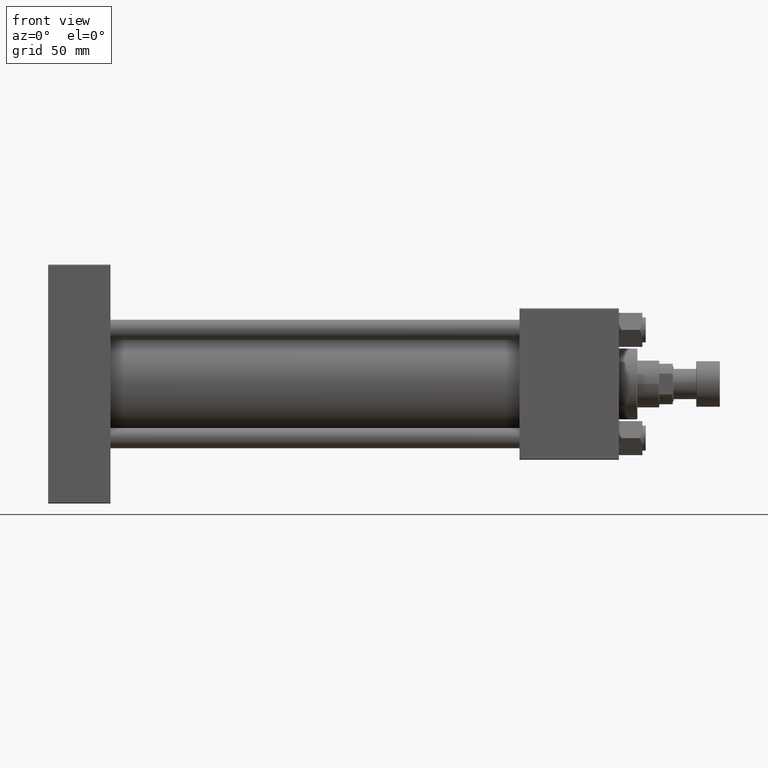
[diagram: clean part render]
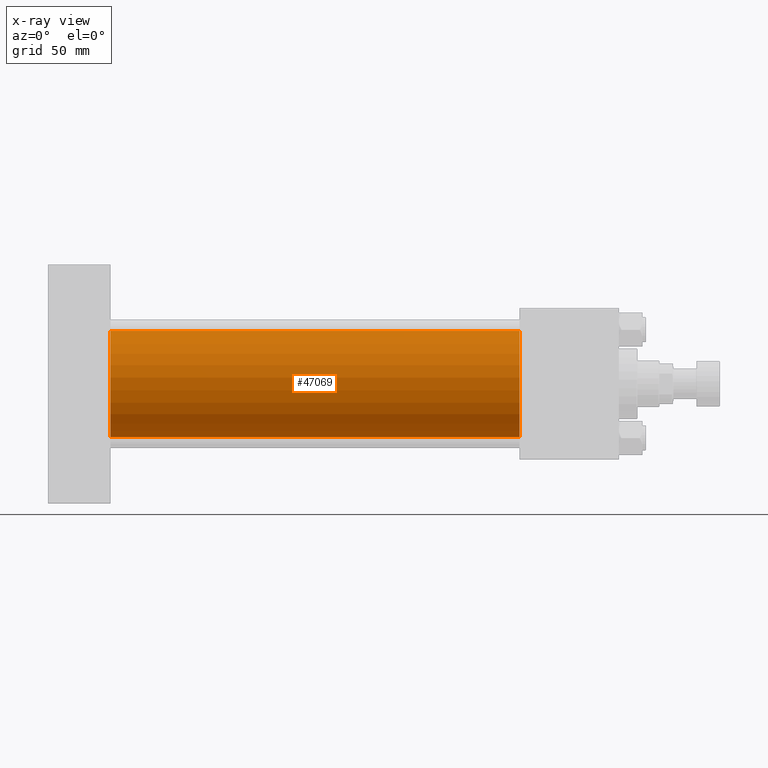
[diagram: x-ray — body ghosted, one internal face saturated and labeled with its STEP entity id]
A machine part, front view, then the same camera in x-ray: the body is ghosted and one INTERNAL B-rep face — a face not visible from any outside direction — is saturated and labeled: STEP entity #47069.
In plain terms, the highlighted cylindrical surface (partial cylindrical patch) has radius 31.5 mm, axis along (-1, -0, -0).
Its self-contained STEP definition (entity closure, byte-faithful):
#33 = DIRECTION ( 'NONE',  ( 0.000000000000000000, 0.000000000000000000, -1.000000000000000000 ) ) ;
#504 = VERTEX_POINT ( 'NONE', #2422 ) ;
#1623 = VERTEX_POINT ( 'NONE', #14372 ) ;
#2422 = CARTESIAN_POINT ( 'NONE',  ( 37.00000000000000000, 1.255552203348951850E-15, -31.50000000000000000 ) ) ;
#3040 = EDGE_LOOP ( 'NONE', ( #41451, #32330, #9988, #32694 ) ) ;
#3165 = EDGE_CURVE ( 'NONE', #15665, #1623, #17457, .T. ) ;
#8079 = DIRECTION ( 'NONE',  ( -1.000000000000000000, -0.000000000000000000, -0.000000000000000000 ) ) ;
#9086 = CIRCLE ( 'NONE', #24369, 31.50000000000000000 ) ;
#9988 = ORIENTED_EDGE ( 'NONE', *, *, #21315, .F. ) ;
#10262 = DIRECTION ( 'NONE',  ( -1.000000000000000000, -0.000000000000000000, -0.000000000000000000 ) ) ;
#12769 = CARTESIAN_POINT ( 'NONE',  ( 37.00000000000000000, -2.602085213965210642E-15, 0.000000000000000000 ) ) ;
#12833 = CARTESIAN_POINT ( 'NONE',  ( 279.9999999999999432, -2.602085213965210642E-15, 0.000000000000000000 ) ) ;
#13116 = CIRCLE ( 'NONE', #34389, 31.50000000000000000 ) ;
#13301 = DIRECTION ( 'NONE',  ( 0.000000000000000000, 0.000000000000000000, -1.000000000000000000 ) ) ;
#14372 = CARTESIAN_POINT ( 'NONE',  ( 37.00000000000000000, -2.602085213965210642E-15, 31.50000000000000000 ) ) ;
#15621 = VECTOR ( 'NONE', #10262, 1000.000000000000000 ) ;
#15665 = VERTEX_POINT ( 'NONE', #22743 ) ;
#16316 = CYLINDRICAL_SURFACE ( 'NONE', #48952, 31.50000000000000000 ) ;
#17457 = LINE ( 'NONE', #45909, #15621 ) ;
#21315 = EDGE_CURVE ( 'NONE', #1623, #504, #13116, .T. ) ;
#22743 = CARTESIAN_POINT ( 'NONE',  ( 279.9999999999999432, -2.602085213965210642E-15, 31.50000000000000000 ) ) ;
#24369 = AXIS2_PLACEMENT_3D ( 'NONE', #40449, #47894, #33 ) ;
#26285 = EDGE_CURVE ( 'NONE', #15665, #47615, #9086, .T. ) ;
#28218 = EDGE_CURVE ( 'NONE', #47615, #504, #43131, .T. ) ;
#30359 = VECTOR ( 'NONE', #42592, 1000.000000000000000 ) ;
#32330 = ORIENTED_EDGE ( 'NONE', *, *, #28218, .T. ) ;
#32694 = ORIENTED_EDGE ( 'NONE', *, *, #3165, .F. ) ;
#33057 = DIRECTION ( 'NONE',  ( 0.000000000000000000, 0.000000000000000000, 1.000000000000000000 ) ) ;
#34389 = AXIS2_PLACEMENT_3D ( 'NONE', #12769, #48936, #13301 ) ;
#39539 = CARTESIAN_POINT ( 'NONE',  ( 279.9999999999999432, 1.255552203348951850E-15, -31.50000000000000000 ) ) ;
#40449 = CARTESIAN_POINT ( 'NONE',  ( 279.9999999999999432, -2.602085213965210642E-15, 0.000000000000000000 ) ) ;
#41451 = ORIENTED_EDGE ( 'NONE', *, *, #26285, .T. ) ;
#42592 = DIRECTION ( 'NONE',  ( -1.000000000000000000, -0.000000000000000000, -0.000000000000000000 ) ) ;
#43131 = LINE ( 'NONE', #46848, #30359 ) ;
#44775 = FACE_OUTER_BOUND ( 'NONE', #3040, .T. ) ;
#45909 = CARTESIAN_POINT ( 'NONE',  ( 279.9999999999999432, -2.602085213965210642E-15, 31.50000000000000000 ) ) ;
#46848 = CARTESIAN_POINT ( 'NONE',  ( 279.9999999999999432, 1.255552203348951850E-15, -31.50000000000000000 ) ) ;
#47069 = ADVANCED_FACE ( 'NONE', ( #44775 ), #16316, .F. ) ;
#47615 = VERTEX_POINT ( 'NONE', #39539 ) ;
#47894 = DIRECTION ( 'NONE',  ( 1.000000000000000000, 0.000000000000000000, 0.000000000000000000 ) ) ;
#48936 = DIRECTION ( 'NONE',  ( 1.000000000000000000, 0.000000000000000000, 0.000000000000000000 ) ) ;
#48952 = AXIS2_PLACEMENT_3D ( 'NONE', #12833, #8079, #33057 ) ;